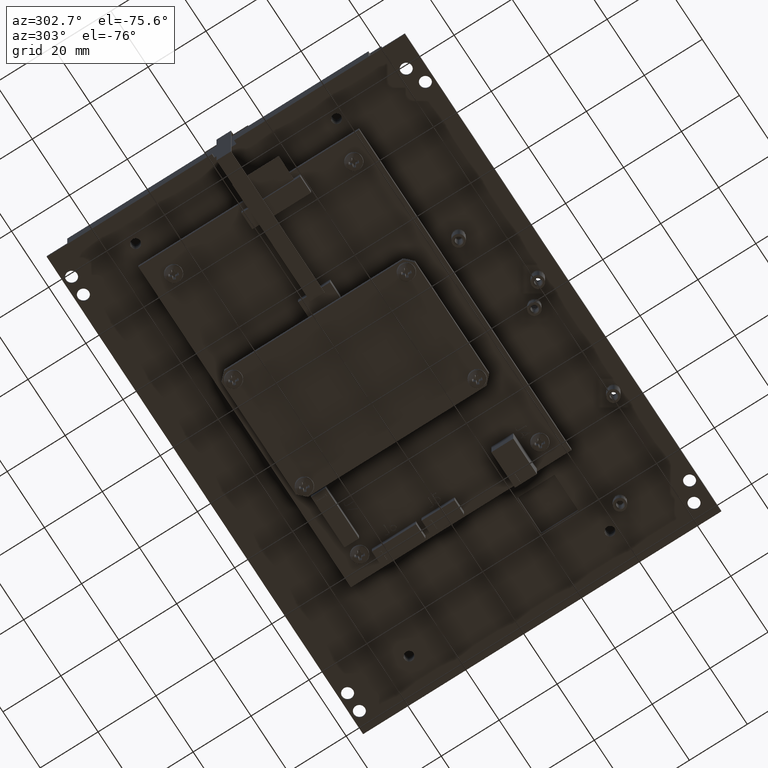
[diagram: clean part render]
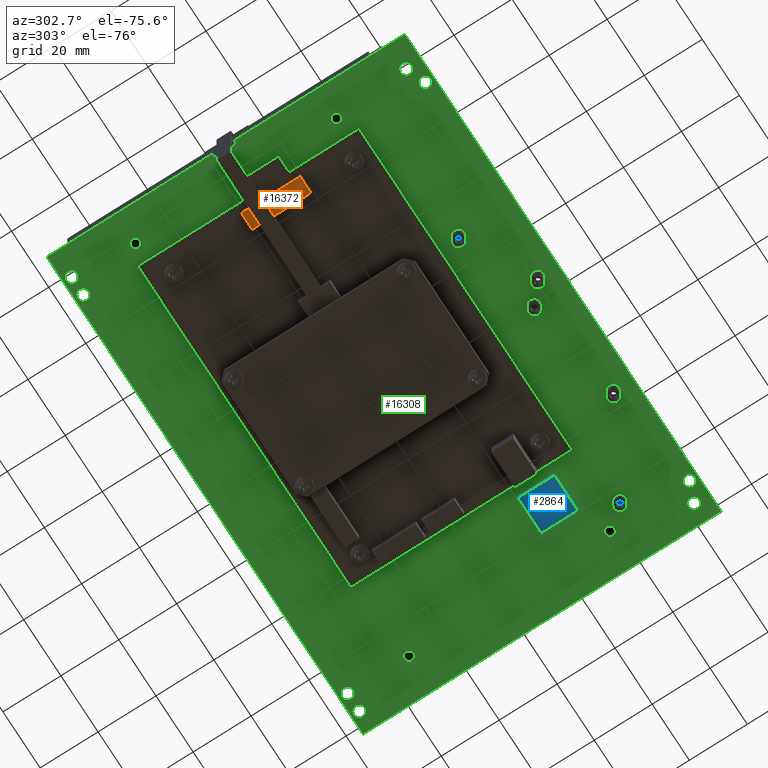
[diagram: same view with three faces highlighted in distinct colors, each labeled with its STEP entity id]
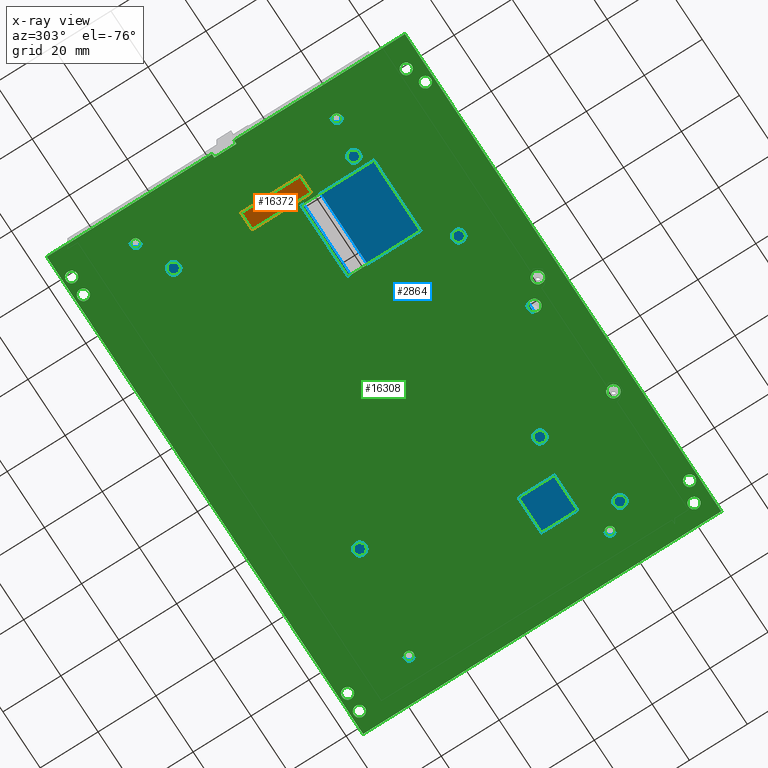
[diagram: x-ray of the same camera — body ghosted, the three highlighted faces saturated]
A machine part, auxiliary view with three faces highlighted in distinct colors.
The next image is the same camera in x-ray (body ghosted, the three faces saturated) — at least one of them is partly hidden behind the body in this view.
Their STEP definitions:

[orange] entity #16372 — the highlighted planar face has unit normal (-0, -0, 1).
#967 = EDGE_CURVE ( 'NONE', #5683, #5650, #19664, .T. ) ;
#971 = EDGE_CURVE ( 'NONE', #5650, #5651, #19691, .T. ) ;
#974 = EDGE_CURVE ( 'NONE', #5651, #5659, #19702, .T. ) ;
#1553 = EDGE_LOOP ( 'NONE', ( #5407, #5408, #5409, #5410 ) ) ;
#1940 = EDGE_CURVE ( 'NONE', #5659, #5683, #6983, .T. ) ;
#4634 = VECTOR ( 'NONE', #7001, 39.37007874015748100 ) ;
#5407 = ORIENTED_EDGE ( 'NONE', *, *, #1940, .T. ) ;
#5408 = ORIENTED_EDGE ( 'NONE', *, *, #967, .T. ) ;
#5409 = ORIENTED_EDGE ( 'NONE', *, *, #971, .T. ) ;
#5410 = ORIENTED_EDGE ( 'NONE', *, *, #974, .T. ) ;
#5650 = VERTEX_POINT ( 'NONE', #14718 ) ;
#5651 = VERTEX_POINT ( 'NONE', #14712 ) ;
#5659 = VERTEX_POINT ( 'NONE', #14726 ) ;
#5683 = VERTEX_POINT ( 'NONE', #14750 ) ;
#6983 = LINE ( 'NONE', #7000, #4634 ) ;
#7000 = CARTESIAN_POINT ( 'NONE',  ( 2.169999999999983100, 0.1630000000000000100, -0.1499999999999986600 ) ) ;
#7001 = DIRECTION ( 'NONE',  ( 3.414809992080366500E-016, -2.711709361697247300E-031, -1.000000000000000000 ) ) ;
#7699 = AXIS2_PLACEMENT_3D ( 'NONE', #11179, #11190, #11191 ) ;
#11179 = CARTESIAN_POINT ( 'NONE',  ( 2.169999999999982200, 0.1629999999999979000, 0.6499999999999958000 ) ) ;
#11187 = FACE_OUTER_BOUND ( 'NONE', #1553, .T. ) ;
#11188 = PLANE ( 'NONE',  #7699 ) ;
#11190 = DIRECTION ( 'NONE',  ( -1.133987551255208500E-030, -1.000000000000000000, -1.232595164407839700E-031 ) ) ;
#11191 = DIRECTION ( 'NONE',  ( 2.714896467620573700E-030, 1.232595164407839700E-031, -1.000000000000000000 ) ) ;
#14712 = CARTESIAN_POINT ( 'NONE',  ( 1.939999999999991100, 0.1629999999999978100, 0.6499999999999917000 ) ) ;
#14718 = CARTESIAN_POINT ( 'NONE',  ( 1.939999999999991100, 0.1629999999999978100, -0.1499999999999984100 ) ) ;
#14726 = CARTESIAN_POINT ( 'NONE',  ( 2.169999999999982200, 0.1629999999999979000, 0.6499999999999958000 ) ) ;
#14750 = CARTESIAN_POINT ( 'NONE',  ( 2.169999999999983100, 0.1630000000000000100, -0.1499999999999986600 ) ) ;
#16198 = VECTOR ( 'NONE', #19696, 39.37007874015748100 ) ;
#16205 = VECTOR ( 'NONE', #19701, 39.37007874015748100 ) ;
#16207 = VECTOR ( 'NONE', #19704, 39.37007874015748100 ) ;
#16372 = ADVANCED_FACE ( 'NONE', ( #11187 ), #11188, .F. ) ;
#19664 = LINE ( 'NONE', #19694, #16198 ) ;
#19691 = LINE ( 'NONE', #19700, #16205 ) ;
#19694 = CARTESIAN_POINT ( 'NONE',  ( 2.169999999999983100, 0.1630000000000000100, -0.1499999999999986600 ) ) ;
#19696 = DIRECTION ( 'NONE',  ( -1.000000000000000000, -4.437342591868207200E-031, 2.566985047891624200E-030 ) ) ;
#19700 = CARTESIAN_POINT ( 'NONE',  ( 1.939999999999991100, 0.1629999999999978100, -0.1499999999999984100 ) ) ;
#19701 = DIRECTION ( 'NONE',  ( -2.714896467620574000E-030, -1.232595164407839700E-031, 1.000000000000000000 ) ) ;
#19702 = LINE ( 'NONE', #19703, #16207 ) ;
#19703 = CARTESIAN_POINT ( 'NONE',  ( 2.169999999999982200, 0.1629999999999979000, 0.6499999999999958000 ) ) ;
#19704 = DIRECTION ( 'NONE',  ( 1.000000000000000000, 4.437342591868207200E-031, -2.566985047891624200E-030 ) ) ;

[blue] entity #2864 — the highlighted planar face has unit normal (0, 0, 1).
#2864 = ADVANCED_FACE ( 'NONE', ( #13893, #13895, #13897, #13899, #13892, #13894, #13896 ), #13901, .F. ) ;
#3633 = VECTOR ( 'NONE', #8657, 39.37007874015748100 ) ;
#3634 = VECTOR ( 'NONE', #8663, 39.37007874015748100 ) ;
#3635 = VECTOR ( 'NONE', #8660, 39.37007874015748100 ) ;
#4447 = CIRCLE ( 'NONE', #4451, 0.05905511811023627500 ) ;
#4451 = AXIS2_PLACEMENT_3D ( 'NONE', #8574, #8575, #8576 ) ;
#4453 = CIRCLE ( 'NONE', #4457, 0.05905511811023627500 ) ;
#4457 = AXIS2_PLACEMENT_3D ( 'NONE', #8586, #8587, #8588 ) ;
#4459 = CIRCLE ( 'NONE', #4463, 0.05905511811023627500 ) ;
#4463 = AXIS2_PLACEMENT_3D ( 'NONE', #8598, #8599, #8600 ) ;
#4465 = CIRCLE ( 'NONE', #4469, 0.05905511811023627500 ) ;
#4467 = VECTOR ( 'NONE', #8619, 39.37007874015748100 ) ;
#4469 = AXIS2_PLACEMENT_3D ( 'NONE', #8612, #8613, #8614 ) ;
#4470 = VECTOR ( 'NONE', #8621, 39.37007874015748100 ) ;
#4471 = VECTOR ( 'NONE', #8623, 39.37007874015748100 ) ;
#4472 = VECTOR ( 'NONE', #8625, 39.37007874015748100 ) ;
#4473 = CIRCLE ( 'NONE', #4476, 0.05905511811023627500 ) ;
#4474 = VECTOR ( 'NONE', #8646, 39.37007874015748100 ) ;
#4475 = CIRCLE ( 'NONE', #4478, 0.05905511811023627500 ) ;
#4476 = AXIS2_PLACEMENT_3D ( 'NONE', #8626, #8627, #8628 ) ;
#4477 = CIRCLE ( 'NONE', #4480, 0.05905511811023627500 ) ;
#4478 = AXIS2_PLACEMENT_3D ( 'NONE', #8629, #8630, #8631 ) ;
#4479 = CIRCLE ( 'NONE', #4482, 0.05905511811023627500 ) ;
#4480 = AXIS2_PLACEMENT_3D ( 'NONE', #8634, #8635, #8636 ) ;
#4481 = VECTOR ( 'NONE', #8643, 39.37007874015748100 ) ;
#4482 = AXIS2_PLACEMENT_3D ( 'NONE', #8639, #8640, #8641 ) ;
#4483 = VECTOR ( 'NONE', #8649, 39.37007874015748100 ) ;
#4484 = VECTOR ( 'NONE', #8652, 39.37007874015748100 ) ;
#4485 = VECTOR ( 'NONE', #8654, 39.37007874015748100 ) ;
#5705 = VERTEX_POINT ( 'NONE', #14765 ) ;
#5708 = VERTEX_POINT ( 'NONE', #14768 ) ;
#5716 = VERTEX_POINT ( 'NONE', #14776 ) ;
#5718 = VERTEX_POINT ( 'NONE', #14778 ) ;
#5719 = VERTEX_POINT ( 'NONE', #14779 ) ;
#5731 = VERTEX_POINT ( 'NONE', #14791 ) ;
#5740 = VERTEX_POINT ( 'NONE', #14800 ) ;
#5741 = VERTEX_POINT ( 'NONE', #14801 ) ;
#5747 = VERTEX_POINT ( 'NONE', #14807 ) ;
#5748 = VERTEX_POINT ( 'NONE', #14808 ) ;
#5749 = VERTEX_POINT ( 'NONE', #14809 ) ;
#5750 = VERTEX_POINT ( 'NONE', #14810 ) ;
#6268 = AXIS2_PLACEMENT_3D ( 'NONE', #13900, #13902, #13903 ) ;
#8574 = CARTESIAN_POINT ( 'NONE',  ( 2.899606299212598200, -1.385826771653543700, -0.0000000000000000000 ) ) ;
#8575 = DIRECTION ( 'NONE',  ( 0.0000000000000000000, 0.0000000000000000000, -1.000000000000000000 ) ) ;
#8576 = DIRECTION ( 'NONE',  ( -1.000000000000000000, 0.0000000000000000000, 0.0000000000000000000 ) ) ;
#8586 = CARTESIAN_POINT ( 'NONE',  ( -2.891732283464566700, -1.385826771653543700, 0.0000000000000000000 ) ) ;
#8587 = DIRECTION ( 'NONE',  ( 0.0000000000000000000, 0.0000000000000000000, -1.000000000000000000 ) ) ;
#8588 = DIRECTION ( 'NONE',  ( -1.000000000000000000, 0.0000000000000000000, 0.0000000000000000000 ) ) ;
#8598 = CARTESIAN_POINT ( 'NONE',  ( -2.891732283464565800, 1.346456692913385000, 0.0000000000000000000 ) ) ;
#8599 = DIRECTION ( 'NONE',  ( 0.0000000000000000000, 0.0000000000000000000, -1.000000000000000000 ) ) ;
#8600 = DIRECTION ( 'NONE',  ( -1.000000000000000000, 0.0000000000000000000, 0.0000000000000000000 ) ) ;
#8610 = LINE ( 'NONE', #8620, #4470 ) ;
#8611 = LINE ( 'NONE', #8617, #4467 ) ;
#8612 = CARTESIAN_POINT ( 'NONE',  ( 2.899606299212598600, 1.346456692913385000, 0.0000000000000000000 ) ) ;
#8613 = DIRECTION ( 'NONE',  ( 0.0000000000000000000, 0.0000000000000000000, -1.000000000000000000 ) ) ;
#8614 = DIRECTION ( 'NONE',  ( -1.000000000000000000, 0.0000000000000000000, 0.0000000000000000000 ) ) ;
#8615 = LINE ( 'NONE', #8622, #4471 ) ;
#8617 = CARTESIAN_POINT ( 'NONE',  ( 0.06102362204724403500, -0.1417322834645677600, -0.0000000000000000000 ) ) ;
#8618 = LINE ( 'NONE', #8624, #4472 ) ;
#8619 = DIRECTION ( 'NONE',  ( 0.0000000000000000000, 1.000000000000000000, 0.0000000000000000000 ) ) ;
#8620 = CARTESIAN_POINT ( 'NONE',  ( 0.3759842519685039400, -0.1417322834645677600, -0.0000000000000000000 ) ) ;
#8621 = DIRECTION ( 'NONE',  ( -1.000000000000000000, 0.0000000000000000000, 0.0000000000000000000 ) ) ;
#8622 = CARTESIAN_POINT ( 'NONE',  ( 0.3759842519685039400, -0.1417322834645677600, -0.0000000000000000000 ) ) ;
#8623 = DIRECTION ( 'NONE',  ( -0.0000000000000000000, -1.000000000000000000, -0.0000000000000000000 ) ) ;
#8624 = CARTESIAN_POINT ( 'NONE',  ( 0.3759842519685039400, 0.4094488188976369600, 0.0000000000000000000 ) ) ;
#8625 = DIRECTION ( 'NONE',  ( 1.000000000000000000, -0.0000000000000000000, -0.0000000000000000000 ) ) ;
#8626 = CARTESIAN_POINT ( 'NONE',  ( 2.899606299212598200, -1.385826771653543700, -0.0000000000000000000 ) ) ;
#8627 = DIRECTION ( 'NONE',  ( 0.0000000000000000000, 0.0000000000000000000, -1.000000000000000000 ) ) ;
#8628 = DIRECTION ( 'NONE',  ( -1.000000000000000000, 0.0000000000000000000, 0.0000000000000000000 ) ) ;
#8629 = CARTESIAN_POINT ( 'NONE',  ( -2.891732283464566700, -1.385826771653543700, 0.0000000000000000000 ) ) ;
#8630 = DIRECTION ( 'NONE',  ( 0.0000000000000000000, 0.0000000000000000000, -1.000000000000000000 ) ) ;
#8631 = DIRECTION ( 'NONE',  ( -1.000000000000000000, 0.0000000000000000000, 0.0000000000000000000 ) ) ;
#8632 = LINE ( 'NONE', #8633, #4481 ) ;
#8633 = CARTESIAN_POINT ( 'NONE',  ( -3.248031496062992600, 2.047244094488188400, 0.0000000000000000000 ) ) ;
#8634 = CARTESIAN_POINT ( 'NONE',  ( -2.891732283464565800, 1.346456692913385000, 0.0000000000000000000 ) ) ;
#8635 = DIRECTION ( 'NONE',  ( 0.0000000000000000000, 0.0000000000000000000, -1.000000000000000000 ) ) ;
#8636 = DIRECTION ( 'NONE',  ( -1.000000000000000000, 0.0000000000000000000, 0.0000000000000000000 ) ) ;
#8637 = LINE ( 'NONE', #8647, #4483 ) ;
#8638 = LINE ( 'NONE', #8644, #4474 ) ;
#8639 = CARTESIAN_POINT ( 'NONE',  ( 2.899606299212598600, 1.346456692913385000, 0.0000000000000000000 ) ) ;
#8640 = DIRECTION ( 'NONE',  ( 0.0000000000000000000, 0.0000000000000000000, -1.000000000000000000 ) ) ;
#8641 = DIRECTION ( 'NONE',  ( -1.000000000000000000, 0.0000000000000000000, 0.0000000000000000000 ) ) ;
#8642 = LINE ( 'NONE', #8650, #4484 ) ;
#8643 = DIRECTION ( 'NONE',  ( 0.0000000000000000000, -1.000000000000000000, 0.0000000000000000000 ) ) ;
#8644 = CARTESIAN_POINT ( 'NONE',  ( -3.248031496062992600, 2.047244094488188400, 0.0000000000000000000 ) ) ;
#8645 = LINE ( 'NONE', #8653, #4485 ) ;
#8646 = DIRECTION ( 'NONE',  ( -1.000000000000000000, -0.0000000000000000000, -0.0000000000000000000 ) ) ;
#8647 = CARTESIAN_POINT ( 'NONE',  ( 3.248031496062992600, 2.047244094488188400, 0.0000000000000000000 ) ) ;
#8649 = DIRECTION ( 'NONE',  ( -0.0000000000000000000, 1.000000000000000000, -0.0000000000000000000 ) ) ;
#8650 = CARTESIAN_POINT ( 'NONE',  ( -3.248031496062992600, -2.047244094488188900, 0.0000000000000000000 ) ) ;
#8652 = DIRECTION ( 'NONE',  ( 1.000000000000000000, 4.205390244792259600E-017, 0.0000000000000000000 ) ) ;
#8653 = CARTESIAN_POINT ( 'NONE',  ( -2.419291338582677300, -0.7496062992125991400, 0.0000000000000000000 ) ) ;
#8654 = DIRECTION ( 'NONE',  ( 0.0000000000000000000, 1.000000000000000000, 0.0000000000000000000 ) ) ;
#8655 = LINE ( 'NONE', #8656, #3633 ) ;
#8656 = CARTESIAN_POINT ( 'NONE',  ( -1.080708661417322900, -0.7496062992125991400, 0.0000000000000000000 ) ) ;
#8657 = DIRECTION ( 'NONE',  ( -1.000000000000000000, 0.0000000000000000000, 0.0000000000000000000 ) ) ;
#8658 = LINE ( 'NONE', #8659, #3635 ) ;
#8659 = CARTESIAN_POINT ( 'NONE',  ( -1.080708661417322900, -0.7496062992125991400, 0.0000000000000000000 ) ) ;
#8660 = DIRECTION ( 'NONE',  ( -0.0000000000000000000, -1.000000000000000000, -0.0000000000000000000 ) ) ;
#8661 = LINE ( 'NONE', #8662, #3634 ) ;
#8662 = CARTESIAN_POINT ( 'NONE',  ( -1.080708661417322900, -0.5133858267716543400, 0.0000000000000000000 ) ) ;
#8663 = DIRECTION ( 'NONE',  ( 1.000000000000000000, -0.0000000000000000000, -0.0000000000000000000 ) ) ;
#9992 = CARTESIAN_POINT ( 'NONE',  ( 0.3759842519685040500, -0.1417322834645677000, 0.0000000000000000000 ) ) ;
#9998 = CARTESIAN_POINT ( 'NONE',  ( -2.950787401574802300, 1.346456692913385000, 0.0000000000000000000 ) ) ;
#9999 = CARTESIAN_POINT ( 'NONE',  ( -2.950787401574802800, -1.385826771653543700, 0.0000000000000000000 ) ) ;
#10006 = CARTESIAN_POINT ( 'NONE',  ( 2.958661417322834700, -1.385826771653543700, 0.0000000000000000000 ) ) ;
#10018 = CARTESIAN_POINT ( 'NONE',  ( -2.832677165354329700, 1.346456692913385000, 0.0000000000000000000 ) ) ;
#10026 = CARTESIAN_POINT ( 'NONE',  ( 0.3759842519685040500, 0.4094488188976369600, 0.0000000000000000000 ) ) ;
#10035 = CARTESIAN_POINT ( 'NONE',  ( -2.832677165354330100, -1.385826771653543700, 0.0000000000000000000 ) ) ;
#10036 = CARTESIAN_POINT ( 'NONE',  ( 2.840551181102362000, -1.385826771653543700, -0.0000000000000000000 ) ) ;
#11844 = EDGE_CURVE ( 'NONE', #12947, #12977, #4447, .T. ) ;
#11852 = EDGE_CURVE ( 'NONE', #12976, #12940, #4453, .T. ) ;
#11861 = EDGE_CURVE ( 'NONE', #12959, #12939, #4459, .T. ) ;
#11869 = EDGE_CURVE ( 'NONE', #5731, #5716, #4465, .T. ) ;
#11873 = EDGE_CURVE ( 'NONE', #5718, #5705, #8611, .T. ) ;
#11875 = EDGE_CURVE ( 'NONE', #12933, #5718, #8610, .T. ) ;
#11877 = EDGE_CURVE ( 'NONE', #12967, #12933, #8615, .T. ) ;
#11880 = EDGE_CURVE ( 'NONE', #5705, #12967, #8618, .T. ) ;
#11882 = EDGE_CURVE ( 'NONE', #12977, #12947, #4473, .T. ) ;
#11883 = EDGE_CURVE ( 'NONE', #12940, #12976, #4475, .T. ) ;
#11886 = EDGE_CURVE ( 'NONE', #12939, #12959, #4477, .T. ) ;
#11888 = EDGE_CURVE ( 'NONE', #5716, #5731, #4479, .T. ) ;
#11890 = EDGE_CURVE ( 'NONE', #5750, #5741, #8632, .T. ) ;
#11892 = EDGE_CURVE ( 'NONE', #5708, #5750, #8638, .T. ) ;
#11894 = EDGE_CURVE ( 'NONE', #5749, #5708, #8637, .T. ) ;
#11896 = EDGE_CURVE ( 'NONE', #5741, #5749, #8642, .T. ) ;
#11898 = EDGE_CURVE ( 'NONE', #5747, #5740, #8645, .T. ) ;
#11900 = EDGE_CURVE ( 'NONE', #5748, #5747, #8655, .T. ) ;
#11901 = EDGE_CURVE ( 'NONE', #5719, #5748, #8658, .T. ) ;
#11902 = EDGE_CURVE ( 'NONE', #5740, #5719, #8661, .T. ) ;
#12933 = VERTEX_POINT ( 'NONE', #9992 ) ;
#12939 = VERTEX_POINT ( 'NONE', #9998 ) ;
#12940 = VERTEX_POINT ( 'NONE', #9999 ) ;
#12947 = VERTEX_POINT ( 'NONE', #10006 ) ;
#12959 = VERTEX_POINT ( 'NONE', #10018 ) ;
#12967 = VERTEX_POINT ( 'NONE', #10026 ) ;
#12976 = VERTEX_POINT ( 'NONE', #10035 ) ;
#12977 = VERTEX_POINT ( 'NONE', #10036 ) ;
#13892 = FACE_BOUND ( 'NONE', #16641, .T. ) ;
#13893 = FACE_BOUND ( 'NONE', #16639, .T. ) ;
#13894 = FACE_OUTER_BOUND ( 'NONE', #16633, .T. ) ;
#13895 = FACE_BOUND ( 'NONE', #16635, .T. ) ;
#13896 = FACE_BOUND ( 'NONE', #16625, .T. ) ;
#13897 = FACE_BOUND ( 'NONE', #16631, .T. ) ;
#13899 = FACE_BOUND ( 'NONE', #16640, .T. ) ;
#13900 = CARTESIAN_POINT ( 'NONE',  ( -3.248031496062992600, 2.047244094488188400, 0.0000000000000000000 ) ) ;
#13901 = PLANE ( 'NONE',  #6268 ) ;
#13902 = DIRECTION ( 'NONE',  ( -0.0000000000000000000, 0.0000000000000000000, 1.000000000000000000 ) ) ;
#13903 = DIRECTION ( 'NONE',  ( 1.000000000000000000, 0.0000000000000000000, 0.0000000000000000000 ) ) ;
#14765 = CARTESIAN_POINT ( 'NONE',  ( 0.06102362204724393100, 0.4094488188976369600, 0.0000000000000000000 ) ) ;
#14768 = CARTESIAN_POINT ( 'NONE',  ( 3.248031496062992600, 2.047244094488188400, 0.0000000000000000000 ) ) ;
#14776 = CARTESIAN_POINT ( 'NONE',  ( 2.840551181102362500, 1.346456692913385000, 0.0000000000000000000 ) ) ;
#14778 = CARTESIAN_POINT ( 'NONE',  ( 0.06102362204724403500, -0.1417322834645677600, -0.0000000000000000000 ) ) ;
#14779 = CARTESIAN_POINT ( 'NONE',  ( -1.080708661417322900, -0.5133858267716542300, 0.0000000000000000000 ) ) ;
#14791 = CARTESIAN_POINT ( 'NONE',  ( 2.958661417322835200, 1.346456692913385000, 0.0000000000000000000 ) ) ;
#14800 = CARTESIAN_POINT ( 'NONE',  ( -2.419291338582677300, -0.5133858267716542300, 0.0000000000000000000 ) ) ;
#14801 = CARTESIAN_POINT ( 'NONE',  ( -3.248031496062992600, -2.047244094488188900, 0.0000000000000000000 ) ) ;
#14807 = CARTESIAN_POINT ( 'NONE',  ( -2.419291338582677300, -0.7496062992125991400, 0.0000000000000000000 ) ) ;
#14808 = CARTESIAN_POINT ( 'NONE',  ( -1.080708661417322900, -0.7496062992125993600, 0.0000000000000000000 ) ) ;
#14809 = CARTESIAN_POINT ( 'NONE',  ( 3.248031496062992600, -2.047244094488188400, 0.0000000000000000000 ) ) ;
#14810 = CARTESIAN_POINT ( 'NONE',  ( -3.248031496062992600, 2.047244094488188400, 0.0000000000000000000 ) ) ;
#15951 = ORIENTED_EDGE ( 'NONE', *, *, #11888, .F. ) ;
#15952 = ORIENTED_EDGE ( 'NONE', *, *, #11898, .F. ) ;
#15953 = ORIENTED_EDGE ( 'NONE', *, *, #11890, .F. ) ;
#15960 = ORIENTED_EDGE ( 'NONE', *, *, #11902, .F. ) ;
#15963 = ORIENTED_EDGE ( 'NONE', *, *, #11873, .F. ) ;
#15964 = ORIENTED_EDGE ( 'NONE', *, *, #11901, .F. ) ;
#15965 = ORIENTED_EDGE ( 'NONE', *, *, #11869, .F. ) ;
#15966 = ORIENTED_EDGE ( 'NONE', *, *, #11875, .F. ) ;
#15967 = ORIENTED_EDGE ( 'NONE', *, *, #11877, .F. ) ;
#15968 = ORIENTED_EDGE ( 'NONE', *, *, #11880, .F. ) ;
#15969 = ORIENTED_EDGE ( 'NONE', *, *, #11882, .F. ) ;
#15970 = ORIENTED_EDGE ( 'NONE', *, *, #11844, .F. ) ;
#15971 = ORIENTED_EDGE ( 'NONE', *, *, #11883, .F. ) ;
#15972 = ORIENTED_EDGE ( 'NONE', *, *, #11852, .F. ) ;
#15973 = ORIENTED_EDGE ( 'NONE', *, *, #11886, .F. ) ;
#15974 = ORIENTED_EDGE ( 'NONE', *, *, #11861, .F. ) ;
#15975 = ORIENTED_EDGE ( 'NONE', *, *, #11894, .F. ) ;
#15976 = ORIENTED_EDGE ( 'NONE', *, *, #11900, .F. ) ;
#15977 = ORIENTED_EDGE ( 'NONE', *, *, #11896, .F. ) ;
#15978 = ORIENTED_EDGE ( 'NONE', *, *, #11892, .F. ) ;
#16625 = EDGE_LOOP ( 'NONE', ( #15952, #15976, #15964, #15960 ) ) ;
#16631 = EDGE_LOOP ( 'NONE', ( #15971, #15972 ) ) ;
#16633 = EDGE_LOOP ( 'NONE', ( #15953, #15978, #15975, #15977 ) ) ;
#16635 = EDGE_LOOP ( 'NONE', ( #15969, #15970 ) ) ;
#16639 = EDGE_LOOP ( 'NONE', ( #15963, #15966, #15967, #15968 ) ) ;
#16640 = EDGE_LOOP ( 'NONE', ( #15973, #15974 ) ) ;
#16641 = EDGE_LOOP ( 'NONE', ( #15951, #15965 ) ) ;

[green] entity #16308 — the highlighted planar face has unit normal (0, 0, -1).
#1607 = EDGE_LOOP ( 'NONE', ( #12518, #12519, #12520, #12521 ) ) ;
#1629 = EDGE_LOOP ( 'NONE', ( #12540, #12541 ) ) ;
#1630 = EDGE_LOOP ( 'NONE', ( #12536, #12537 ) ) ;
#2213 = EDGE_LOOP ( 'NONE', ( #12522, #12523, #12524, #12525 ) ) ;
#3715 = VECTOR ( 'NONE', #8918, 39.37007874015748100 ) ;
#3717 = VECTOR ( 'NONE', #8916, 39.37007874015748100 ) ;
#3718 = VECTOR ( 'NONE', #8929, 39.37007874015748100 ) ;
#3719 = VECTOR ( 'NONE', #8921, 39.37007874015748100 ) ;
#3720 = VECTOR ( 'NONE', #8924, 39.37007874015748100 ) ;
#3721 = VECTOR ( 'NONE', #8927, 39.37007874015748100 ) ;
#3722 = VECTOR ( 'NONE', #8940, 39.37007874015748100 ) ;
#3723 = VECTOR ( 'NONE', #8932, 39.37007874015748100 ) ;
#3724 = VECTOR ( 'NONE', #8935, 39.37007874015748100 ) ;
#3725 = VECTOR ( 'NONE', #8938, 39.37007874015748100 ) ;
#3727 = VECTOR ( 'NONE', #8943, 39.37007874015748100 ) ;
#3728 = CIRCLE ( 'NONE', #3730, 0.08300000000000018500 ) ;
#3729 = CIRCLE ( 'NONE', #3732, 0.08300000000000018500 ) ;
#3730 = AXIS2_PLACEMENT_3D ( 'NONE', #8944, #8945, #8946 ) ;
#3731 = CIRCLE ( 'NONE', #3734, 0.08299999999999990700 ) ;
#3732 = AXIS2_PLACEMENT_3D ( 'NONE', #8947, #8948, #8949 ) ;
#3733 = CIRCLE ( 'NONE', #3736, 0.08299999999999963000 ) ;
#3734 = AXIS2_PLACEMENT_3D ( 'NONE', #8950, #8951, #8952 ) ;
#3735 = CIRCLE ( 'NONE', #3738, 0.08299999999999963000 ) ;
#3736 = AXIS2_PLACEMENT_3D ( 'NONE', #8953, #8954, #8955 ) ;
#3737 = CIRCLE ( 'NONE', #3740, 0.08299999999999963000 ) ;
#3738 = AXIS2_PLACEMENT_3D ( 'NONE', #8956, #8957, #8958 ) ;
#3739 = CIRCLE ( 'NONE', #3742, 0.08299999999999963000 ) ;
#3740 = AXIS2_PLACEMENT_3D ( 'NONE', #8959, #8960, #8961 ) ;
#3741 = CIRCLE ( 'NONE', #3744, 0.08300000000000010100 ) ;
#3742 = AXIS2_PLACEMENT_3D ( 'NONE', #8962, #8963, #8964 ) ;
#3743 = CIRCLE ( 'NONE', #3746, 0.08300000000000018500 ) ;
#3744 = AXIS2_PLACEMENT_3D ( 'NONE', #8965, #8966, #8967 ) ;
#3745 = CIRCLE ( 'NONE', #3748, 0.07500000000000015000 ) ;
#3746 = AXIS2_PLACEMENT_3D ( 'NONE', #8968, #8969, #8970 ) ;
#3747 = CIRCLE ( 'NONE', #3750, 0.07500000000000015000 ) ;
#3748 = AXIS2_PLACEMENT_3D ( 'NONE', #8971, #8972, #8973 ) ;
#3749 = CIRCLE ( 'NONE', #3752, 0.07500000000000015000 ) ;
#3750 = AXIS2_PLACEMENT_3D ( 'NONE', #8974, #8975, #8976 ) ;
#3751 = CIRCLE ( 'NONE', #3754, 0.07500000000000015000 ) ;
#3752 = AXIS2_PLACEMENT_3D ( 'NONE', #8977, #8978, #8979 ) ;
#3753 = CIRCLE ( 'NONE', #3756, 0.07500000000000015000 ) ;
#3754 = AXIS2_PLACEMENT_3D ( 'NONE', #8980, #8981, #8982 ) ;
#3755 = CIRCLE ( 'NONE', #3758, 0.07500000000000015000 ) ;
#3756 = AXIS2_PLACEMENT_3D ( 'NONE', #8983, #8984, #8985 ) ;
#3757 = CIRCLE ( 'NONE', #3760, 0.07500000000000015000 ) ;
#3758 = AXIS2_PLACEMENT_3D ( 'NONE', #8986, #8987, #8988 ) ;
#3759 = CIRCLE ( 'NONE', #3762, 0.07500000000000015000 ) ;
#3760 = AXIS2_PLACEMENT_3D ( 'NONE', #8989, #8990, #8991 ) ;
#3761 = CIRCLE ( 'NONE', #3764, 0.06250000000000022200 ) ;
#3762 = AXIS2_PLACEMENT_3D ( 'NONE', #8992, #8993, #8994 ) ;
#3763 = CIRCLE ( 'NONE', #3766, 0.06250000000000022200 ) ;
#3764 = AXIS2_PLACEMENT_3D ( 'NONE', #8995, #8996, #8997 ) ;
#3765 = CIRCLE ( 'NONE', #3768, 0.06249999999999967400 ) ;
#3766 = AXIS2_PLACEMENT_3D ( 'NONE', #8998, #8999, #9000 ) ;
#3767 = CIRCLE ( 'NONE', #3770, 0.06249999999999967400 ) ;
#3768 = AXIS2_PLACEMENT_3D ( 'NONE', #9003, #9004, #9005 ) ;
#3770 = AXIS2_PLACEMENT_3D ( 'NONE', #9007, #9008, #9009 ) ;
#4342 = VECTOR ( 'NONE', #19086, 39.37007874015748100 ) ;
#4343 = VECTOR ( 'NONE', #19081, 39.37007874015748100 ) ;
#5694 = EDGE_LOOP ( 'NONE', ( #12526, #12527, #12528, #12529, #12530, #12531, #12532, #12533 ) ) ;
#5697 = VERTEX_POINT ( 'NONE', #14758 ) ;
#5698 = VERTEX_POINT ( 'NONE', #14759 ) ;
#5700 = VERTEX_POINT ( 'NONE', #14761 ) ;
#5703 = VERTEX_POINT ( 'NONE', #14763 ) ;
#5704 = VERTEX_POINT ( 'NONE', #14764 ) ;
#5707 = VERTEX_POINT ( 'NONE', #14767 ) ;
#5712 = VERTEX_POINT ( 'NONE', #14772 ) ;
#5713 = VERTEX_POINT ( 'NONE', #14773 ) ;
#5715 = VERTEX_POINT ( 'NONE', #14775 ) ;
#5737 = VERTEX_POINT ( 'NONE', #14797 ) ;
#5738 = VERTEX_POINT ( 'NONE', #14798 ) ;
#5743 = VERTEX_POINT ( 'NONE', #14803 ) ;
#5745 = VERTEX_POINT ( 'NONE', #14805 ) ;
#5746 = VERTEX_POINT ( 'NONE', #14806 ) ;
#5752 = VERTEX_POINT ( 'NONE', #14812 ) ;
#5755 = VERTEX_POINT ( 'NONE', #14815 ) ;
#5765 = VERTEX_POINT ( 'NONE', #14825 ) ;
#5766 = VERTEX_POINT ( 'NONE', #14826 ) ;
#5769 = VERTEX_POINT ( 'NONE', #14829 ) ;
#5774 = VERTEX_POINT ( 'NONE', #14834 ) ;
#5792 = VERTEX_POINT ( 'NONE', #14852 ) ;
#5803 = VERTEX_POINT ( 'NONE', #14863 ) ;
#5804 = VERTEX_POINT ( 'NONE', #14864 ) ;
#5816 = VERTEX_POINT ( 'NONE', #14876 ) ;
#5817 = VERTEX_POINT ( 'NONE', #14877 ) ;
#5818 = VERTEX_POINT ( 'NONE', #14878 ) ;
#5822 = VERTEX_POINT ( 'NONE', #14882 ) ;
#5829 = VERTEX_POINT ( 'NONE', #14889 ) ;
#5830 = VERTEX_POINT ( 'NONE', #14890 ) ;
#5832 = VERTEX_POINT ( 'NONE', #14892 ) ;
#5837 = VERTEX_POINT ( 'NONE', #14897 ) ;
#5839 = VERTEX_POINT ( 'NONE', #14899 ) ;
#5840 = VERTEX_POINT ( 'NONE', #14900 ) ;
#5842 = VERTEX_POINT ( 'NONE', #14902 ) ;
#5844 = VERTEX_POINT ( 'NONE', #14904 ) ;
#5846 = VERTEX_POINT ( 'NONE', #14906 ) ;
#5849 = VERTEX_POINT ( 'NONE', #14909 ) ;
#5850 = VERTEX_POINT ( 'NONE', #14910 ) ;
#5857 = VERTEX_POINT ( 'NONE', #14917 ) ;
#5862 = VERTEX_POINT ( 'NONE', #14922 ) ;
#5863 = VERTEX_POINT ( 'NONE', #14923 ) ;
#5866 = VERTEX_POINT ( 'NONE', #14926 ) ;
#5867 = VERTEX_POINT ( 'NONE', #14928 ) ;
#5868 = VERTEX_POINT ( 'NONE', #14929 ) ;
#5874 = VERTEX_POINT ( 'NONE', #14939 ) ;
#5882 = VERTEX_POINT ( 'NONE', #14952 ) ;
#5888 = VERTEX_POINT ( 'NONE', #14961 ) ;
#5890 = VERTEX_POINT ( 'NONE', #14965 ) ;
#5899 = VERTEX_POINT ( 'NONE', #14978 ) ;
#5901 = VERTEX_POINT ( 'NONE', #14980 ) ;
#5904 = VERTEX_POINT ( 'NONE', #14983 ) ;
#5914 = VERTEX_POINT ( 'NONE', #14993 ) ;
#5919 = VERTEX_POINT ( 'NONE', #14998 ) ;
#5920 = VERTEX_POINT ( 'NONE', #14999 ) ;
#5921 = VERTEX_POINT ( 'NONE', #15000 ) ;
#5922 = VERTEX_POINT ( 'NONE', #15001 ) ;
#5924 = VERTEX_POINT ( 'NONE', #15003 ) ;
#5927 = VERTEX_POINT ( 'NONE', #15006 ) ;
#5930 = EDGE_LOOP ( 'NONE', ( #12548, #12549 ) ) ;
#5931 = EDGE_LOOP ( 'NONE', ( #12542, #12543 ) ) ;
#5932 = EDGE_LOOP ( 'NONE', ( #12550, #12551 ) ) ;
#5933 = EDGE_LOOP ( 'NONE', ( #12544, #12545 ) ) ;
#5934 = EDGE_LOOP ( 'NONE', ( #12552, #12553 ) ) ;
#5935 = EDGE_LOOP ( 'NONE', ( #12546, #12547 ) ) ;
#5936 = EDGE_LOOP ( 'NONE', ( #12554, #12555 ) ) ;
#5937 = EDGE_LOOP ( 'NONE', ( #12556, #12557 ) ) ;
#5938 = EDGE_LOOP ( 'NONE', ( #12558, #12559 ) ) ;
#5939 = EDGE_LOOP ( 'NONE', ( #12560, #12561 ) ) ;
#5940 = EDGE_LOOP ( 'NONE', ( #12562, #12563 ) ) ;
#5941 = EDGE_LOOP ( 'NONE', ( #12564, #12565 ) ) ;
#5942 = EDGE_LOOP ( 'NONE', ( #12566, #12567 ) ) ;
#5943 = EDGE_LOOP ( 'NONE', ( #12568, #12569 ) ) ;
#5944 = EDGE_LOOP ( 'NONE', ( #12570, #12571 ) ) ;
#5945 = EDGE_LOOP ( 'NONE', ( #12572, #12573 ) ) ;
#5946 = EDGE_LOOP ( 'NONE', ( #12574, #12575 ) ) ;
#7635 = AXIS2_PLACEMENT_3D ( 'NONE', #10839, #10842, #10843 ) ;
#8744 = CIRCLE ( 'NONE', #8751, 0.08300000000000018500 ) ;
#8749 = CIRCLE ( 'NONE', #8760, 0.08300000000000018500 ) ;
#8751 = AXIS2_PLACEMENT_3D ( 'NONE', #18794, #18795, #18796 ) ;
#8760 = AXIS2_PLACEMENT_3D ( 'NONE', #18804, #18805, #18806 ) ;
#8761 = CIRCLE ( 'NONE', #8771, 0.08299999999999990700 ) ;
#8771 = AXIS2_PLACEMENT_3D ( 'NONE', #18816, #18817, #18818 ) ;
#8773 = CIRCLE ( 'NONE', #8782, 0.08299999999999963000 ) ;
#8782 = AXIS2_PLACEMENT_3D ( 'NONE', #18828, #18829, #18830 ) ;
#8784 = CIRCLE ( 'NONE', #8793, 0.08299999999999963000 ) ;
#8793 = AXIS2_PLACEMENT_3D ( 'NONE', #18840, #18841, #18842 ) ;
#8795 = CIRCLE ( 'NONE', #8805, 0.08299999999999963000 ) ;
#8805 = AXIS2_PLACEMENT_3D ( 'NONE', #18852, #18853, #18854 ) ;
#8806 = CIRCLE ( 'NONE', #8813, 0.08299999999999963000 ) ;
#8813 = AXIS2_PLACEMENT_3D ( 'NONE', #18864, #18865, #18866 ) ;
#8815 = CIRCLE ( 'NONE', #8824, 0.08300000000000010100 ) ;
#8824 = AXIS2_PLACEMENT_3D ( 'NONE', #18876, #18877, #18878 ) ;
#8826 = CIRCLE ( 'NONE', #8834, 0.08300000000000018500 ) ;
#8834 = AXIS2_PLACEMENT_3D ( 'NONE', #18888, #18889, #18890 ) ;
#8835 = CIRCLE ( 'NONE', #8844, 0.07500000000000015000 ) ;
#8844 = AXIS2_PLACEMENT_3D ( 'NONE', #18900, #18901, #18902 ) ;
#8846 = CIRCLE ( 'NONE', #8855, 0.07500000000000015000 ) ;
#8855 = AXIS2_PLACEMENT_3D ( 'NONE', #18912, #18913, #18914 ) ;
#8901 = LINE ( 'NONE', #8917, #3715 ) ;
#8906 = LINE ( 'NONE', #8928, #3718 ) ;
#8913 = LINE ( 'NONE', #8915, #3717 ) ;
#8914 = LINE ( 'NONE', #8939, #3722 ) ;
#8915 = CARTESIAN_POINT ( 'NONE',  ( 1.956000000000000600, -0.5619999999999999400, 0.0000000000000000000 ) ) ;
#8916 = DIRECTION ( 'NONE',  ( 0.0000000000000000000, -1.000000000000000000, 0.0000000000000000000 ) ) ;
#8917 = CARTESIAN_POINT ( 'NONE',  ( 1.956000000000000600, -1.061999999999999400, 0.0000000000000000000 ) ) ;
#8918 = DIRECTION ( 'NONE',  ( 1.000000000000000000, 0.0000000000000000000, 0.0000000000000000000 ) ) ;
#8919 = LINE ( 'NONE', #8920, #3719 ) ;
#8920 = CARTESIAN_POINT ( 'NONE',  ( 2.456000000000001300, -0.5619999999999999400, 0.0000000000000000000 ) ) ;
#8921 = DIRECTION ( 'NONE',  ( -0.0000000000000000000, 1.000000000000000000, -0.0000000000000000000 ) ) ;
#8922 = LINE ( 'NONE', #8923, #3720 ) ;
#8923 = CARTESIAN_POINT ( 'NONE',  ( 1.956000000000000600, -0.5619999999999999400, 0.0000000000000000000 ) ) ;
#8924 = DIRECTION ( 'NONE',  ( -1.000000000000000000, -0.0000000000000000000, -0.0000000000000000000 ) ) ;
#8925 = LINE ( 'NONE', #8926, #3721 ) ;
#8926 = CARTESIAN_POINT ( 'NONE',  ( -2.290999999999998100, -0.3349999999999993000, 0.0000000000000000000 ) ) ;
#8927 = DIRECTION ( 'NONE',  ( 0.0000000000000000000, -1.000000000000000000, 0.0000000000000000000 ) ) ;
#8928 = CARTESIAN_POINT ( 'NONE',  ( -2.290999999999998100, -1.334999999999999500, 0.0000000000000000000 ) ) ;
#8929 = DIRECTION ( 'NONE',  ( 1.000000000000000000, 0.0000000000000000000, 0.0000000000000000000 ) ) ;
#8930 = LINE ( 'NONE', #8931, #3723 ) ;
#8931 = CARTESIAN_POINT ( 'NONE',  ( -1.290999999999997700, -0.3349999999999993000, 0.0000000000000000000 ) ) ;
#8932 = DIRECTION ( 'NONE',  ( -0.0000000000000000000, 1.000000000000000000, -0.0000000000000000000 ) ) ;
#8933 = LINE ( 'NONE', #8934, #3724 ) ;
#8934 = CARTESIAN_POINT ( 'NONE',  ( -2.290999999999998100, -0.3349999999999993000, 0.0000000000000000000 ) ) ;
#8935 = DIRECTION ( 'NONE',  ( -1.000000000000000000, -0.0000000000000000000, -0.0000000000000000000 ) ) ;
#8936 = LINE ( 'NONE', #8937, #3725 ) ;
#8937 = CARTESIAN_POINT ( 'NONE',  ( -3.349999999999998300, 0.1880000000000005600, 0.0000000000000000000 ) ) ;
#8938 = DIRECTION ( 'NONE',  ( -1.000000000000000000, -0.0000000000000000000, -0.0000000000000000000 ) ) ;
#8939 = CARTESIAN_POINT ( 'NONE',  ( -3.349999999999998300, -0.1120000000000000900, 0.0000000000000000000 ) ) ;
#8940 = DIRECTION ( 'NONE',  ( 1.000000000000000000, 0.0000000000000000000, 0.0000000000000000000 ) ) ;
#8941 = LINE ( 'NONE', #8942, #3727 ) ;
#8942 = CARTESIAN_POINT ( 'NONE',  ( -3.299999999999998000, 0.1880000000000005600, 0.0000000000000000000 ) ) ;
#8943 = DIRECTION ( 'NONE',  ( -0.0000000000000000000, 1.000000000000000000, -0.0000000000000000000 ) ) ;
#8944 = CARTESIAN_POINT ( 'NONE',  ( 2.625000000000000400, -1.522000000000000000, 0.0000000000000000000 ) ) ;
#8945 = DIRECTION ( 'NONE',  ( 0.0000000000000000000, 0.0000000000000000000, 1.000000000000000000 ) ) ;
#8946 = DIRECTION ( 'NONE',  ( 1.000000000000000000, 0.0000000000000000000, 0.0000000000000000000 ) ) ;
#8947 = CARTESIAN_POINT ( 'NONE',  ( 0.1500000000000014100, -1.946999999999999400, 0.0000000000000000000 ) ) ;
#8948 = DIRECTION ( 'NONE',  ( 0.0000000000000000000, 0.0000000000000000000, 1.000000000000000000 ) ) ;
#8949 = DIRECTION ( 'NONE',  ( 1.000000000000000000, 0.0000000000000000000, 0.0000000000000000000 ) ) ;
#8950 = CARTESIAN_POINT ( 'NONE',  ( 1.490000000000001500, -1.161999999999999900, 0.0000000000000000000 ) ) ;
#8951 = DIRECTION ( 'NONE',  ( 0.0000000000000000000, 0.0000000000000000000, 1.000000000000000000 ) ) ;
#8952 = DIRECTION ( 'NONE',  ( 1.000000000000000000, 0.0000000000000000000, 0.0000000000000000000 ) ) ;
#8953 = CARTESIAN_POINT ( 'NONE',  ( 1.490000000000001300, 1.287999999999999800, 0.0000000000000000000 ) ) ;
#8954 = DIRECTION ( 'NONE',  ( 0.0000000000000000000, 0.0000000000000000000, 1.000000000000000000 ) ) ;
#8955 = DIRECTION ( 'NONE',  ( 1.000000000000000000, 0.0000000000000000000, 0.0000000000000000000 ) ) ;
#8956 = CARTESIAN_POINT ( 'NONE',  ( -2.449999999999998400, -1.161999999999999900, 0.0000000000000000000 ) ) ;
#8957 = DIRECTION ( 'NONE',  ( 0.0000000000000000000, 0.0000000000000000000, 1.000000000000000000 ) ) ;
#8958 = DIRECTION ( 'NONE',  ( 1.000000000000000000, 0.0000000000000000000, 0.0000000000000000000 ) ) ;
#8959 = CARTESIAN_POINT ( 'NONE',  ( -2.449999999999998400, 1.287999999999999800, 0.0000000000000000000 ) ) ;
#8960 = DIRECTION ( 'NONE',  ( 0.0000000000000000000, 0.0000000000000000000, 1.000000000000000000 ) ) ;
#8961 = DIRECTION ( 'NONE',  ( 1.000000000000000000, 0.0000000000000000000, 0.0000000000000000000 ) ) ;
#8962 = CARTESIAN_POINT ( 'NONE',  ( 1.490000000000001300, -2.161999999999999900, 0.0000000000000000000 ) ) ;
#8963 = DIRECTION ( 'NONE',  ( 0.0000000000000000000, 0.0000000000000000000, 1.000000000000000000 ) ) ;
#8964 = DIRECTION ( 'NONE',  ( 1.000000000000000000, 0.0000000000000000000, 0.0000000000000000000 ) ) ;
#8965 = CARTESIAN_POINT ( 'NONE',  ( -0.1099999999999985600, -2.161999999999999900, 0.0000000000000000000 ) ) ;
#8966 = DIRECTION ( 'NONE',  ( 0.0000000000000000000, 0.0000000000000000000, 1.000000000000000000 ) ) ;
#8967 = DIRECTION ( 'NONE',  ( 1.000000000000000000, 0.0000000000000000000, 0.0000000000000000000 ) ) ;
#8968 = CARTESIAN_POINT ( 'NONE',  ( -1.009999999999998900, -1.662000000000000100, 0.0000000000000000000 ) ) ;
#8969 = DIRECTION ( 'NONE',  ( 0.0000000000000000000, 0.0000000000000000000, 1.000000000000000000 ) ) ;
#8970 = DIRECTION ( 'NONE',  ( 1.000000000000000000, 0.0000000000000000000, 0.0000000000000000000 ) ) ;
#8971 = CARTESIAN_POINT ( 'NONE',  ( 3.100000000000000100, 2.325000000000001100, 0.0000000000000000000 ) ) ;
#8972 = DIRECTION ( 'NONE',  ( 0.0000000000000000000, 0.0000000000000000000, 1.000000000000000000 ) ) ;
#8973 = DIRECTION ( 'NONE',  ( -1.000000000000000000, 0.0000000000000000000, 0.0000000000000000000 ) ) ;
#8974 = CARTESIAN_POINT ( 'NONE',  ( 2.850000000000000100, 2.325000000000001100, 0.0000000000000000000 ) ) ;
#8975 = DIRECTION ( 'NONE',  ( 0.0000000000000000000, 0.0000000000000000000, 1.000000000000000000 ) ) ;
#8976 = DIRECTION ( 'NONE',  ( -1.000000000000000000, 0.0000000000000000000, 0.0000000000000000000 ) ) ;
#8977 = CARTESIAN_POINT ( 'NONE',  ( 3.100000000000001000, -2.224999999999999200, 0.0000000000000000000 ) ) ;
#8978 = DIRECTION ( 'NONE',  ( 0.0000000000000000000, 0.0000000000000000000, 1.000000000000000000 ) ) ;
#8979 = DIRECTION ( 'NONE',  ( -1.000000000000000000, 0.0000000000000000000, 0.0000000000000000000 ) ) ;
#8980 = CARTESIAN_POINT ( 'NONE',  ( 2.850000000000001000, -2.324999999999999300, 0.0000000000000000000 ) ) ;
#8981 = DIRECTION ( 'NONE',  ( 0.0000000000000000000, 0.0000000000000000000, 1.000000000000000000 ) ) ;
#8982 = DIRECTION ( 'NONE',  ( -1.000000000000000000, 0.0000000000000000000, 0.0000000000000000000 ) ) ;
#8983 = CARTESIAN_POINT ( 'NONE',  ( -2.744999999999998800, -2.325000000000000200, 0.0000000000000000000 ) ) ;
#8984 = DIRECTION ( 'NONE',  ( 0.0000000000000000000, 0.0000000000000000000, 1.000000000000000000 ) ) ;
#8985 = DIRECTION ( 'NONE',  ( 1.000000000000000000, 0.0000000000000000000, 0.0000000000000000000 ) ) ;
#8986 = CARTESIAN_POINT ( 'NONE',  ( -2.994999999999998300, -2.225000000000000100, 0.0000000000000000000 ) ) ;
#8987 = DIRECTION ( 'NONE',  ( 0.0000000000000000000, 0.0000000000000000000, 1.000000000000000000 ) ) ;
#8988 = DIRECTION ( 'NONE',  ( 1.000000000000000000, 0.0000000000000000000, 0.0000000000000000000 ) ) ;
#8989 = CARTESIAN_POINT ( 'NONE',  ( -2.744999999999998800, 2.325000000000000200, 0.0000000000000000000 ) ) ;
#8990 = DIRECTION ( 'NONE',  ( 0.0000000000000000000, 0.0000000000000000000, 1.000000000000000000 ) ) ;
#8991 = DIRECTION ( 'NONE',  ( 1.000000000000000000, 0.0000000000000000000, 0.0000000000000000000 ) ) ;
#8992 = CARTESIAN_POINT ( 'NONE',  ( -2.994999999999999200, 2.325000000000000200, 0.0000000000000000000 ) ) ;
#8993 = DIRECTION ( 'NONE',  ( 0.0000000000000000000, 0.0000000000000000000, 1.000000000000000000 ) ) ;
#8994 = DIRECTION ( 'NONE',  ( 1.000000000000000000, 0.0000000000000000000, 0.0000000000000000000 ) ) ;
#8995 = CARTESIAN_POINT ( 'NONE',  ( 2.859000000000000900, -1.236999999999999700, 0.0000000000000000000 ) ) ;
#8996 = DIRECTION ( 'NONE',  ( 0.0000000000000000000, 0.0000000000000000000, 1.000000000000000000 ) ) ;
#8997 = DIRECTION ( 'NONE',  ( 1.000000000000000000, 0.0000000000000000000, 0.0000000000000000000 ) ) ;
#8998 = CARTESIAN_POINT ( 'NONE',  ( -2.931999999999999100, -1.237000000000000800, 0.0000000000000000000 ) ) ;
#8999 = DIRECTION ( 'NONE',  ( 0.0000000000000000000, 0.0000000000000000000, 1.000000000000000000 ) ) ;
#9000 = DIRECTION ( 'NONE',  ( 1.000000000000000000, 0.0000000000000000000, 0.0000000000000000000 ) ) ;
#9003 = CARTESIAN_POINT ( 'NONE',  ( 2.859000000000000400, 1.495000000000000600, 0.0000000000000000000 ) ) ;
#9004 = DIRECTION ( 'NONE',  ( 0.0000000000000000000, 0.0000000000000000000, 1.000000000000000000 ) ) ;
#9005 = DIRECTION ( 'NONE',  ( 1.000000000000000000, 0.0000000000000000000, 0.0000000000000000000 ) ) ;
#9007 = CARTESIAN_POINT ( 'NONE',  ( -2.931999999999999100, 1.495000000000000600, 0.0000000000000000000 ) ) ;
#9008 = DIRECTION ( 'NONE',  ( 0.0000000000000000000, 0.0000000000000000000, 1.000000000000000000 ) ) ;
#9009 = DIRECTION ( 'NONE',  ( 1.000000000000000000, 0.0000000000000000000, 0.0000000000000000000 ) ) ;
#10810 = FACE_BOUND ( 'NONE', #5935, .T. ) ;
#10812 = FACE_BOUND ( 'NONE', #2213, .T. ) ;
#10816 = FACE_BOUND ( 'NONE', #1630, .T. ) ;
#10817 = FACE_BOUND ( 'NONE', #1607, .T. ) ;
#10818 = FACE_BOUND ( 'NONE', #16070, .T. ) ;
#10819 = FACE_BOUND ( 'NONE', #1629, .T. ) ;
#10820 = FACE_OUTER_BOUND ( 'NONE', #5694, .T. ) ;
#10821 = FACE_BOUND ( 'NONE', #5931, .T. ) ;
#10822 = FACE_BOUND ( 'NONE', #16019, .T. ) ;
#10823 = FACE_BOUND ( 'NONE', #5933, .T. ) ;
#10824 = FACE_BOUND ( 'NONE', #5930, .T. ) ;
#10825 = FACE_BOUND ( 'NONE', #5932, .T. ) ;
#10826 = FACE_BOUND ( 'NONE', #5934, .T. ) ;
#10827 = FACE_BOUND ( 'NONE', #5936, .T. ) ;
#10828 = FACE_BOUND ( 'NONE', #5937, .T. ) ;
#10829 = FACE_BOUND ( 'NONE', #5938, .T. ) ;
#10830 = FACE_BOUND ( 'NONE', #5939, .T. ) ;
#10831 = FACE_BOUND ( 'NONE', #5940, .T. ) ;
#10832 = FACE_BOUND ( 'NONE', #5941, .T. ) ;
#10833 = FACE_BOUND ( 'NONE', #5942, .T. ) ;
#10834 = FACE_BOUND ( 'NONE', #5943, .T. ) ;
#10835 = FACE_BOUND ( 'NONE', #5944, .T. ) ;
#10836 = FACE_BOUND ( 'NONE', #5945, .T. ) ;
#10837 = FACE_BOUND ( 'NONE', #5946, .T. ) ;
#10839 = CARTESIAN_POINT ( 'NONE',  ( 3.350000000000000100, 2.435000000000000500, 0.0000000000000000000 ) ) ;
#10841 = PLANE ( 'NONE',  #7635 ) ;
#10842 = DIRECTION ( 'NONE',  ( 0.0000000000000000000, 0.0000000000000000000, -1.000000000000000000 ) ) ;
#10843 = DIRECTION ( 'NONE',  ( -1.000000000000000000, 0.0000000000000000000, -0.0000000000000000000 ) ) ;
#11469 = EDGE_CURVE ( 'NONE', #5863, #5866, #8744, .T. ) ;
#11476 = EDGE_CURVE ( 'NONE', #5904, #5837, #8749, .T. ) ;
#11484 = EDGE_CURVE ( 'NONE', #5703, #5737, #8761, .T. ) ;
#11492 = EDGE_CURVE ( 'NONE', #5713, #5712, #8773, .T. ) ;
#11501 = EDGE_CURVE ( 'NONE', #5698, #5697, #8784, .T. ) ;
#11510 = EDGE_CURVE ( 'NONE', #5919, #5924, #8795, .T. ) ;
#11519 = EDGE_CURVE ( 'NONE', #5921, #5920, #8806, .T. ) ;
#11529 = EDGE_CURVE ( 'NONE', #5927, #5715, #8815, .T. ) ;
#11538 = EDGE_CURVE ( 'NONE', #5818, #5817, #8826, .T. ) ;
#11547 = EDGE_CURVE ( 'NONE', #5846, #5840, #8835, .T. ) ;
#11557 = EDGE_CURVE ( 'NONE', #5922, #5707, #8846, .T. ) ;
#11565 = EDGE_CURVE ( 'NONE', #5746, #5738, #16808, .T. ) ;
#11574 = EDGE_CURVE ( 'NONE', #5804, #5832, #16810, .T. ) ;
#11584 = EDGE_CURVE ( 'NONE', #5816, #5822, #16817, .T. ) ;
#11592 = EDGE_CURVE ( 'NONE', #5774, #5765, #16823, .T. ) ;
#11601 = EDGE_CURVE ( 'NONE', #5849, #5850, #16829, .T. ) ;
#11611 = EDGE_CURVE ( 'NONE', #5899, #5901, #16835, .T. ) ;
#11619 = EDGE_CURVE ( 'NONE', #5700, #5704, #16841, .T. ) ;
#11628 = EDGE_CURVE ( 'NONE', #5874, #5803, #16847, .T. ) ;
#11637 = EDGE_CURVE ( 'NONE', #5914, #5842, #16853, .T. ) ;
#11646 = EDGE_CURVE ( 'NONE', #5752, #5755, #16859, .T. ) ;
#11655 = EDGE_CURVE ( 'NONE', #5890, #5888, #19038, .T. ) ;
#11665 = EDGE_CURVE ( 'NONE', #5867, #5862, #19055, .T. ) ;
#11673 = EDGE_CURVE ( 'NONE', #5862, #5890, #19067, .T. ) ;
#11682 = EDGE_CURVE ( 'NONE', #5882, #5868, #19056, .T. ) ;
#11687 = EDGE_CURVE ( 'NONE', #5868, #5867, #19077, .T. ) ;
#12026 = EDGE_CURVE ( 'NONE', #5766, #5844, #8913, .T. ) ;
#12028 = EDGE_CURVE ( 'NONE', #5844, #5745, #8901, .T. ) ;
#12030 = EDGE_CURVE ( 'NONE', #5745, #5839, #8919, .T. ) ;
#12031 = EDGE_CURVE ( 'NONE', #5839, #5766, #8922, .T. ) ;
#12032 = EDGE_CURVE ( 'NONE', #5857, #5743, #8925, .T. ) ;
#12034 = EDGE_CURVE ( 'NONE', #5743, #5829, #8906, .T. ) ;
#12035 = EDGE_CURVE ( 'NONE', #5829, #5830, #8930, .T. ) ;
#12037 = EDGE_CURVE ( 'NONE', #5830, #5857, #8933, .T. ) ;
#12038 = EDGE_CURVE ( 'NONE', #5792, #5888, #8936, .T. ) ;
#12040 = EDGE_CURVE ( 'NONE', #5882, #5769, #8914, .T. ) ;
#12042 = EDGE_CURVE ( 'NONE', #5769, #5792, #8941, .T. ) ;
#12043 = EDGE_CURVE ( 'NONE', #5866, #5863, #3728, .T. ) ;
#12045 = EDGE_CURVE ( 'NONE', #5837, #5904, #3729, .T. ) ;
#12046 = EDGE_CURVE ( 'NONE', #5737, #5703, #3731, .T. ) ;
#12048 = EDGE_CURVE ( 'NONE', #5712, #5713, #3733, .T. ) ;
#12049 = EDGE_CURVE ( 'NONE', #5697, #5698, #3735, .T. ) ;
#12050 = EDGE_CURVE ( 'NONE', #5924, #5919, #3737, .T. ) ;
#12052 = EDGE_CURVE ( 'NONE', #5920, #5921, #3739, .T. ) ;
#12054 = EDGE_CURVE ( 'NONE', #5715, #5927, #3741, .T. ) ;
#12056 = EDGE_CURVE ( 'NONE', #5817, #5818, #3743, .T. ) ;
#12058 = EDGE_CURVE ( 'NONE', #5840, #5846, #3745, .T. ) ;
#12059 = EDGE_CURVE ( 'NONE', #5707, #5922, #3747, .T. ) ;
#12061 = EDGE_CURVE ( 'NONE', #5738, #5746, #3749, .T. ) ;
#12062 = EDGE_CURVE ( 'NONE', #5832, #5804, #3751, .T. ) ;
#12064 = EDGE_CURVE ( 'NONE', #5822, #5816, #3753, .T. ) ;
#12066 = EDGE_CURVE ( 'NONE', #5765, #5774, #3755, .T. ) ;
#12067 = EDGE_CURVE ( 'NONE', #5850, #5849, #3757, .T. ) ;
#12069 = EDGE_CURVE ( 'NONE', #5901, #5899, #3759, .T. ) ;
#12070 = EDGE_CURVE ( 'NONE', #5704, #5700, #3761, .T. ) ;
#12072 = EDGE_CURVE ( 'NONE', #5803, #5874, #3763, .T. ) ;
#12073 = EDGE_CURVE ( 'NONE', #5842, #5914, #3765, .T. ) ;
#12074 = EDGE_CURVE ( 'NONE', #5755, #5752, #3767, .T. ) ;
#12518 = ORIENTED_EDGE ( 'NONE', *, *, #12026, .T. ) ;
#12519 = ORIENTED_EDGE ( 'NONE', *, *, #12028, .T. ) ;
#12520 = ORIENTED_EDGE ( 'NONE', *, *, #12030, .T. ) ;
#12521 = ORIENTED_EDGE ( 'NONE', *, *, #12031, .T. ) ;
#12522 = ORIENTED_EDGE ( 'NONE', *, *, #12032, .T. ) ;
#12523 = ORIENTED_EDGE ( 'NONE', *, *, #12034, .T. ) ;
#12524 = ORIENTED_EDGE ( 'NONE', *, *, #12035, .T. ) ;
#12525 = ORIENTED_EDGE ( 'NONE', *, *, #12037, .T. ) ;
#12526 = ORIENTED_EDGE ( 'NONE', *, *, #12038, .T. ) ;
#12527 = ORIENTED_EDGE ( 'NONE', *, *, #11655, .F. ) ;
#12528 = ORIENTED_EDGE ( 'NONE', *, *, #11673, .F. ) ;
#12529 = ORIENTED_EDGE ( 'NONE', *, *, #11665, .F. ) ;
#12530 = ORIENTED_EDGE ( 'NONE', *, *, #11687, .F. ) ;
#12531 = ORIENTED_EDGE ( 'NONE', *, *, #11682, .F. ) ;
#12532 = ORIENTED_EDGE ( 'NONE', *, *, #12040, .T. ) ;
#12533 = ORIENTED_EDGE ( 'NONE', *, *, #12042, .T. ) ;
#12534 = ORIENTED_EDGE ( 'NONE', *, *, #12043, .T. ) ;
#12535 = ORIENTED_EDGE ( 'NONE', *, *, #11469, .T. ) ;
#12536 = ORIENTED_EDGE ( 'NONE', *, *, #12045, .T. ) ;
#12537 = ORIENTED_EDGE ( 'NONE', *, *, #11476, .T. ) ;
#12538 = ORIENTED_EDGE ( 'NONE', *, *, #12046, .T. ) ;
#12539 = ORIENTED_EDGE ( 'NONE', *, *, #11484, .T. ) ;
#12540 = ORIENTED_EDGE ( 'NONE', *, *, #12048, .T. ) ;
#12541 = ORIENTED_EDGE ( 'NONE', *, *, #11492, .T. ) ;
#12542 = ORIENTED_EDGE ( 'NONE', *, *, #12049, .T. ) ;
#12543 = ORIENTED_EDGE ( 'NONE', *, *, #11501, .T. ) ;
#12544 = ORIENTED_EDGE ( 'NONE', *, *, #12050, .T. ) ;
#12545 = ORIENTED_EDGE ( 'NONE', *, *, #11510, .T. ) ;
#12546 = ORIENTED_EDGE ( 'NONE', *, *, #12052, .T. ) ;
#12547 = ORIENTED_EDGE ( 'NONE', *, *, #11519, .T. ) ;
#12548 = ORIENTED_EDGE ( 'NONE', *, *, #12054, .T. ) ;
#12549 = ORIENTED_EDGE ( 'NONE', *, *, #11529, .T. ) ;
#12550 = ORIENTED_EDGE ( 'NONE', *, *, #12056, .T. ) ;
#12551 = ORIENTED_EDGE ( 'NONE', *, *, #11538, .T. ) ;
#12552 = ORIENTED_EDGE ( 'NONE', *, *, #12058, .T. ) ;
#12553 = ORIENTED_EDGE ( 'NONE', *, *, #11547, .T. ) ;
#12554 = ORIENTED_EDGE ( 'NONE', *, *, #12059, .T. ) ;
#12555 = ORIENTED_EDGE ( 'NONE', *, *, #11557, .T. ) ;
#12556 = ORIENTED_EDGE ( 'NONE', *, *, #12061, .T. ) ;
#12557 = ORIENTED_EDGE ( 'NONE', *, *, #11565, .T. ) ;
#12558 = ORIENTED_EDGE ( 'NONE', *, *, #12062, .T. ) ;
#12559 = ORIENTED_EDGE ( 'NONE', *, *, #11574, .T. ) ;
#12560 = ORIENTED_EDGE ( 'NONE', *, *, #12064, .T. ) ;
#12561 = ORIENTED_EDGE ( 'NONE', *, *, #11584, .T. ) ;
#12562 = ORIENTED_EDGE ( 'NONE', *, *, #12066, .T. ) ;
#12563 = ORIENTED_EDGE ( 'NONE', *, *, #11592, .T. ) ;
#12564 = ORIENTED_EDGE ( 'NONE', *, *, #12067, .T. ) ;
#12565 = ORIENTED_EDGE ( 'NONE', *, *, #11601, .T. ) ;
#12566 = ORIENTED_EDGE ( 'NONE', *, *, #12069, .T. ) ;
#12567 = ORIENTED_EDGE ( 'NONE', *, *, #11611, .T. ) ;
#12568 = ORIENTED_EDGE ( 'NONE', *, *, #12070, .T. ) ;
#12569 = ORIENTED_EDGE ( 'NONE', *, *, #11619, .T. ) ;
#12570 = ORIENTED_EDGE ( 'NONE', *, *, #12072, .T. ) ;
#12571 = ORIENTED_EDGE ( 'NONE', *, *, #11628, .T. ) ;
#12572 = ORIENTED_EDGE ( 'NONE', *, *, #12073, .T. ) ;
#12573 = ORIENTED_EDGE ( 'NONE', *, *, #11637, .T. ) ;
#12574 = ORIENTED_EDGE ( 'NONE', *, *, #12074, .T. ) ;
#12575 = ORIENTED_EDGE ( 'NONE', *, *, #11646, .T. ) ;
#14758 = CARTESIAN_POINT ( 'NONE',  ( -2.366999999999998700, -1.161999999999999900, 0.0000000000000000000 ) ) ;
#14759 = CARTESIAN_POINT ( 'NONE',  ( -2.532999999999997700, -1.161999999999999900, 0.0000000000000000000 ) ) ;
#14761 = CARTESIAN_POINT ( 'NONE',  ( 2.796500000000000400, -1.236999999999999700, 0.0000000000000000000 ) ) ;
#14763 = CARTESIAN_POINT ( 'NONE',  ( 1.407000000000001600, -1.161999999999999900, 0.0000000000000000000 ) ) ;
#14764 = CARTESIAN_POINT ( 'NONE',  ( 2.921500000000000900, -1.236999999999999700, 0.0000000000000000000 ) ) ;
#14767 = CARTESIAN_POINT ( 'NONE',  ( 2.925000000000000300, 2.325000000000001100, 0.0000000000000000000 ) ) ;
#14772 = CARTESIAN_POINT ( 'NONE',  ( 1.573000000000000800, 1.287999999999999800, 0.0000000000000000000 ) ) ;
#14773 = CARTESIAN_POINT ( 'NONE',  ( 1.407000000000001600, 1.287999999999999800, 0.0000000000000000000 ) ) ;
#14775 = CARTESIAN_POINT ( 'NONE',  ( -0.02699999999999845900, -2.161999999999999900, 0.0000000000000000000 ) ) ;
#14797 = CARTESIAN_POINT ( 'NONE',  ( 1.573000000000001500, -1.161999999999999900, 0.0000000000000000000 ) ) ;
#14798 = CARTESIAN_POINT ( 'NONE',  ( 3.175000000000001200, -2.224999999999999200, 0.0000000000000000000 ) ) ;
#14803 = CARTESIAN_POINT ( 'NONE',  ( -2.290999999999998100, -1.334999999999999500, 0.0000000000000000000 ) ) ;
#14805 = CARTESIAN_POINT ( 'NONE',  ( 2.456000000000001300, -1.061999999999999400, 0.0000000000000000000 ) ) ;
#14806 = CARTESIAN_POINT ( 'NONE',  ( 3.025000000000000800, -2.224999999999999200, 0.0000000000000000000 ) ) ;
#14812 = CARTESIAN_POINT ( 'NONE',  ( -2.994499999999999100, 1.495000000000000600, 0.0000000000000000000 ) ) ;
#14815 = CARTESIAN_POINT ( 'NONE',  ( -2.869499999999999500, 1.495000000000000600, 0.0000000000000000000 ) ) ;
#14825 = CARTESIAN_POINT ( 'NONE',  ( -2.919999999999998200, -2.225000000000000100, 0.0000000000000000000 ) ) ;
#14826 = CARTESIAN_POINT ( 'NONE',  ( 1.956000000000000600, -0.5619999999999999400, 0.0000000000000000000 ) ) ;
#14829 = CARTESIAN_POINT ( 'NONE',  ( -3.299999999999998000, -0.1120000000000000900, 0.0000000000000000000 ) ) ;
#14834 = CARTESIAN_POINT ( 'NONE',  ( -3.069999999999998500, -2.225000000000000100, 0.0000000000000000000 ) ) ;
#14852 = CARTESIAN_POINT ( 'NONE',  ( -3.299999999999998000, 0.1880000000000005600, 0.0000000000000000000 ) ) ;
#14863 = CARTESIAN_POINT ( 'NONE',  ( -2.869499999999999100, -1.237000000000000800, 0.0000000000000000000 ) ) ;
#14864 = CARTESIAN_POINT ( 'NONE',  ( 2.775000000000000800, -2.324999999999999300, 0.0000000000000000000 ) ) ;
#14876 = CARTESIAN_POINT ( 'NONE',  ( -2.819999999999999000, -2.325000000000000200, 0.0000000000000000000 ) ) ;
#14877 = CARTESIAN_POINT ( 'NONE',  ( -0.9269999999999986000, -1.662000000000000100, 0.0000000000000000000 ) ) ;
#14878 = CARTESIAN_POINT ( 'NONE',  ( -1.092999999999998900, -1.662000000000000100, 0.0000000000000000000 ) ) ;
#14882 = CARTESIAN_POINT ( 'NONE',  ( -2.669999999999998600, -2.325000000000000200, 0.0000000000000000000 ) ) ;
#14889 = CARTESIAN_POINT ( 'NONE',  ( -1.290999999999997700, -1.334999999999999500, 0.0000000000000000000 ) ) ;
#14890 = CARTESIAN_POINT ( 'NONE',  ( -1.290999999999997700, -0.3349999999999993000, 0.0000000000000000000 ) ) ;
#14892 = CARTESIAN_POINT ( 'NONE',  ( 2.925000000000001200, -2.324999999999999300, 0.0000000000000000000 ) ) ;
#14897 = CARTESIAN_POINT ( 'NONE',  ( 0.2330000000000015900, -1.946999999999999400, 0.0000000000000000000 ) ) ;
#14899 = CARTESIAN_POINT ( 'NONE',  ( 2.456000000000001300, -0.5619999999999999400, 0.0000000000000000000 ) ) ;
#14900 = CARTESIAN_POINT ( 'NONE',  ( 3.175000000000000300, 2.325000000000001100, 0.0000000000000000000 ) ) ;
#14902 = CARTESIAN_POINT ( 'NONE',  ( 2.921500000000000000, 1.495000000000000600, 0.0000000000000000000 ) ) ;
#14904 = CARTESIAN_POINT ( 'NONE',  ( 1.956000000000000600, -1.061999999999999400, 0.0000000000000000000 ) ) ;
#14906 = CARTESIAN_POINT ( 'NONE',  ( 3.024999999999999900, 2.325000000000001100, 0.0000000000000000000 ) ) ;
#14909 = CARTESIAN_POINT ( 'NONE',  ( -2.819999999999999000, 2.325000000000000200, 0.0000000000000000000 ) ) ;
#14910 = CARTESIAN_POINT ( 'NONE',  ( -2.669999999999998600, 2.325000000000000200, 0.0000000000000000000 ) ) ;
#14917 = CARTESIAN_POINT ( 'NONE',  ( -2.290999999999998100, -0.3349999999999993000, 0.0000000000000000000 ) ) ;
#14922 = CARTESIAN_POINT ( 'NONE',  ( 3.350000000000000100, 2.435000000000000500, 0.0000000000000000000 ) ) ;
#14923 = CARTESIAN_POINT ( 'NONE',  ( 2.542000000000000300, -1.522000000000000000, 0.0000000000000000000 ) ) ;
#14926 = CARTESIAN_POINT ( 'NONE',  ( 2.708000000000000600, -1.522000000000000000, 0.0000000000000000000 ) ) ;
#14928 = CARTESIAN_POINT ( 'NONE',  ( 3.350000000000000100, -2.435000000000000100, 0.0000000000000000000 ) ) ;
#14929 = CARTESIAN_POINT ( 'NONE',  ( -3.349999999999998800, -2.435000000000000100, 0.0000000000000000000 ) ) ;
#14939 = CARTESIAN_POINT ( 'NONE',  ( -2.994499999999999500, -1.237000000000000800, 0.0000000000000000000 ) ) ;
#14952 = CARTESIAN_POINT ( 'NONE',  ( -3.349999999999998300, -0.1120000000000000900, 0.0000000000000000000 ) ) ;
#14961 = CARTESIAN_POINT ( 'NONE',  ( -3.349999999999998300, 0.1880000000000005600, 0.0000000000000000000 ) ) ;
#14965 = CARTESIAN_POINT ( 'NONE',  ( -3.349999999999998800, 2.435000000000000500, 0.0000000000000000000 ) ) ;
#14978 = CARTESIAN_POINT ( 'NONE',  ( -3.069999999999999400, 2.325000000000000200, 0.0000000000000000000 ) ) ;
#14980 = CARTESIAN_POINT ( 'NONE',  ( -2.919999999999999000, 2.325000000000000200, 0.0000000000000000000 ) ) ;
#14983 = CARTESIAN_POINT ( 'NONE',  ( 0.06700000000000122500, -1.946999999999999400, 0.0000000000000000000 ) ) ;
#14993 = CARTESIAN_POINT ( 'NONE',  ( 2.796500000000000400, 1.495000000000000600, 0.0000000000000000000 ) ) ;
#14998 = CARTESIAN_POINT ( 'NONE',  ( -2.532999999999997700, 1.287999999999999800, 0.0000000000000000000 ) ) ;
#14999 = CARTESIAN_POINT ( 'NONE',  ( 1.573000000000000800, -2.161999999999999900, 0.0000000000000000000 ) ) ;
#15000 = CARTESIAN_POINT ( 'NONE',  ( 1.407000000000001600, -2.161999999999999900, 0.0000000000000000000 ) ) ;
#15001 = CARTESIAN_POINT ( 'NONE',  ( 2.774999999999999900, 2.325000000000001100, 0.0000000000000000000 ) ) ;
#15003 = CARTESIAN_POINT ( 'NONE',  ( -2.366999999999998700, 1.287999999999999800, 0.0000000000000000000 ) ) ;
#15006 = CARTESIAN_POINT ( 'NONE',  ( -0.1929999999999986700, -2.161999999999999900, 0.0000000000000000000 ) ) ;
#16019 = EDGE_LOOP ( 'NONE', ( #12534, #12535 ) ) ;
#16070 = EDGE_LOOP ( 'NONE', ( #12538, #12539 ) ) ;
#16308 = ADVANCED_FACE ( 'NONE', ( #10817, #10812, #10820, #10822, #10816, #10818, #10819, #10821, #10823, #10810, #10824, #10825, #10826, #10827, #10828, #10829, #10830, #10831, #10832, #10833, #10834, #10835, #10836, #10837 ), #10841, .T. ) ;
#16808 = CIRCLE ( 'NONE', #16809, 0.07500000000000015000 ) ;
#16809 = AXIS2_PLACEMENT_3D ( 'NONE', #18924, #18925, #18926 ) ;
#16810 = CIRCLE ( 'NONE', #16816, 0.07500000000000015000 ) ;
#16816 = AXIS2_PLACEMENT_3D ( 'NONE', #18936, #18937, #18938 ) ;
#16817 = CIRCLE ( 'NONE', #16822, 0.07500000000000015000 ) ;
#16822 = AXIS2_PLACEMENT_3D ( 'NONE', #18948, #18949, #18950 ) ;
#16823 = CIRCLE ( 'NONE', #16828, 0.07500000000000015000 ) ;
#16828 = AXIS2_PLACEMENT_3D ( 'NONE', #18960, #18961, #18962 ) ;
#16829 = CIRCLE ( 'NONE', #16834, 0.07500000000000015000 ) ;
#16834 = AXIS2_PLACEMENT_3D ( 'NONE', #18972, #18973, #18974 ) ;
#16835 = CIRCLE ( 'NONE', #16840, 0.07500000000000015000 ) ;
#16840 = AXIS2_PLACEMENT_3D ( 'NONE', #18984, #18985, #18986 ) ;
#16841 = CIRCLE ( 'NONE', #16846, 0.06250000000000022200 ) ;
#16846 = AXIS2_PLACEMENT_3D ( 'NONE', #18996, #18997, #18998 ) ;
#16847 = CIRCLE ( 'NONE', #16852, 0.06250000000000022200 ) ;
#16852 = AXIS2_PLACEMENT_3D ( 'NONE', #19008, #19009, #19010 ) ;
#16853 = CIRCLE ( 'NONE', #16858, 0.06249999999999967400 ) ;
#16858 = AXIS2_PLACEMENT_3D ( 'NONE', #19020, #19021, #19022 ) ;
#16859 = CIRCLE ( 'NONE', #16864, 0.06249999999999967400 ) ;
#16864 = AXIS2_PLACEMENT_3D ( 'NONE', #19032, #19033, #19034 ) ;
#16865 = VECTOR ( 'NONE', #19046, 39.37007874015748100 ) ;
#16872 = VECTOR ( 'NONE', #19058, 39.37007874015748100 ) ;
#16875 = VECTOR ( 'NONE', #19069, 39.37007874015748100 ) ;
#18794 = CARTESIAN_POINT ( 'NONE',  ( 2.625000000000000400, -1.522000000000000000, 0.0000000000000000000 ) ) ;
#18795 = DIRECTION ( 'NONE',  ( 0.0000000000000000000, 0.0000000000000000000, 1.000000000000000000 ) ) ;
#18796 = DIRECTION ( 'NONE',  ( 1.000000000000000000, 0.0000000000000000000, 0.0000000000000000000 ) ) ;
#18804 = CARTESIAN_POINT ( 'NONE',  ( 0.1500000000000014100, -1.946999999999999400, 0.0000000000000000000 ) ) ;
#18805 = DIRECTION ( 'NONE',  ( 0.0000000000000000000, 0.0000000000000000000, 1.000000000000000000 ) ) ;
#18806 = DIRECTION ( 'NONE',  ( 1.000000000000000000, 0.0000000000000000000, 0.0000000000000000000 ) ) ;
#18816 = CARTESIAN_POINT ( 'NONE',  ( 1.490000000000001500, -1.161999999999999900, 0.0000000000000000000 ) ) ;
#18817 = DIRECTION ( 'NONE',  ( 0.0000000000000000000, 0.0000000000000000000, 1.000000000000000000 ) ) ;
#18818 = DIRECTION ( 'NONE',  ( 1.000000000000000000, 0.0000000000000000000, 0.0000000000000000000 ) ) ;
#18828 = CARTESIAN_POINT ( 'NONE',  ( 1.490000000000001300, 1.287999999999999800, 0.0000000000000000000 ) ) ;
#18829 = DIRECTION ( 'NONE',  ( 0.0000000000000000000, 0.0000000000000000000, 1.000000000000000000 ) ) ;
#18830 = DIRECTION ( 'NONE',  ( 1.000000000000000000, 0.0000000000000000000, 0.0000000000000000000 ) ) ;
#18840 = CARTESIAN_POINT ( 'NONE',  ( -2.449999999999998400, -1.161999999999999900, 0.0000000000000000000 ) ) ;
#18841 = DIRECTION ( 'NONE',  ( 0.0000000000000000000, 0.0000000000000000000, 1.000000000000000000 ) ) ;
#18842 = DIRECTION ( 'NONE',  ( 1.000000000000000000, 0.0000000000000000000, 0.0000000000000000000 ) ) ;
#18852 = CARTESIAN_POINT ( 'NONE',  ( -2.449999999999998400, 1.287999999999999800, 0.0000000000000000000 ) ) ;
#18853 = DIRECTION ( 'NONE',  ( 0.0000000000000000000, 0.0000000000000000000, 1.000000000000000000 ) ) ;
#18854 = DIRECTION ( 'NONE',  ( 1.000000000000000000, 0.0000000000000000000, 0.0000000000000000000 ) ) ;
#18864 = CARTESIAN_POINT ( 'NONE',  ( 1.490000000000001300, -2.161999999999999900, 0.0000000000000000000 ) ) ;
#18865 = DIRECTION ( 'NONE',  ( 0.0000000000000000000, 0.0000000000000000000, 1.000000000000000000 ) ) ;
#18866 = DIRECTION ( 'NONE',  ( 1.000000000000000000, 0.0000000000000000000, 0.0000000000000000000 ) ) ;
#18876 = CARTESIAN_POINT ( 'NONE',  ( -0.1099999999999985600, -2.161999999999999900, 0.0000000000000000000 ) ) ;
#18877 = DIRECTION ( 'NONE',  ( 0.0000000000000000000, 0.0000000000000000000, 1.000000000000000000 ) ) ;
#18878 = DIRECTION ( 'NONE',  ( 1.000000000000000000, 0.0000000000000000000, 0.0000000000000000000 ) ) ;
#18888 = CARTESIAN_POINT ( 'NONE',  ( -1.009999999999998900, -1.662000000000000100, 0.0000000000000000000 ) ) ;
#18889 = DIRECTION ( 'NONE',  ( 0.0000000000000000000, 0.0000000000000000000, 1.000000000000000000 ) ) ;
#18890 = DIRECTION ( 'NONE',  ( 1.000000000000000000, 0.0000000000000000000, 0.0000000000000000000 ) ) ;
#18900 = CARTESIAN_POINT ( 'NONE',  ( 3.100000000000000100, 2.325000000000001100, 0.0000000000000000000 ) ) ;
#18901 = DIRECTION ( 'NONE',  ( 0.0000000000000000000, 0.0000000000000000000, 1.000000000000000000 ) ) ;
#18902 = DIRECTION ( 'NONE',  ( -1.000000000000000000, 0.0000000000000000000, 0.0000000000000000000 ) ) ;
#18912 = CARTESIAN_POINT ( 'NONE',  ( 2.850000000000000100, 2.325000000000001100, 0.0000000000000000000 ) ) ;
#18913 = DIRECTION ( 'NONE',  ( 0.0000000000000000000, 0.0000000000000000000, 1.000000000000000000 ) ) ;
#18914 = DIRECTION ( 'NONE',  ( -1.000000000000000000, 0.0000000000000000000, 0.0000000000000000000 ) ) ;
#18924 = CARTESIAN_POINT ( 'NONE',  ( 3.100000000000001000, -2.224999999999999200, 0.0000000000000000000 ) ) ;
#18925 = DIRECTION ( 'NONE',  ( 0.0000000000000000000, 0.0000000000000000000, 1.000000000000000000 ) ) ;
#18926 = DIRECTION ( 'NONE',  ( -1.000000000000000000, 0.0000000000000000000, 0.0000000000000000000 ) ) ;
#18936 = CARTESIAN_POINT ( 'NONE',  ( 2.850000000000001000, -2.324999999999999300, 0.0000000000000000000 ) ) ;
#18937 = DIRECTION ( 'NONE',  ( 0.0000000000000000000, 0.0000000000000000000, 1.000000000000000000 ) ) ;
#18938 = DIRECTION ( 'NONE',  ( -1.000000000000000000, 0.0000000000000000000, 0.0000000000000000000 ) ) ;
#18948 = CARTESIAN_POINT ( 'NONE',  ( -2.744999999999998800, -2.325000000000000200, 0.0000000000000000000 ) ) ;
#18949 = DIRECTION ( 'NONE',  ( 0.0000000000000000000, 0.0000000000000000000, 1.000000000000000000 ) ) ;
#18950 = DIRECTION ( 'NONE',  ( 1.000000000000000000, 0.0000000000000000000, 0.0000000000000000000 ) ) ;
#18960 = CARTESIAN_POINT ( 'NONE',  ( -2.994999999999998300, -2.225000000000000100, 0.0000000000000000000 ) ) ;
#18961 = DIRECTION ( 'NONE',  ( 0.0000000000000000000, 0.0000000000000000000, 1.000000000000000000 ) ) ;
#18962 = DIRECTION ( 'NONE',  ( 1.000000000000000000, 0.0000000000000000000, 0.0000000000000000000 ) ) ;
#18972 = CARTESIAN_POINT ( 'NONE',  ( -2.744999999999998800, 2.325000000000000200, 0.0000000000000000000 ) ) ;
#18973 = DIRECTION ( 'NONE',  ( 0.0000000000000000000, 0.0000000000000000000, 1.000000000000000000 ) ) ;
#18974 = DIRECTION ( 'NONE',  ( 1.000000000000000000, 0.0000000000000000000, 0.0000000000000000000 ) ) ;
#18984 = CARTESIAN_POINT ( 'NONE',  ( -2.994999999999999200, 2.325000000000000200, 0.0000000000000000000 ) ) ;
#18985 = DIRECTION ( 'NONE',  ( 0.0000000000000000000, 0.0000000000000000000, 1.000000000000000000 ) ) ;
#18986 = DIRECTION ( 'NONE',  ( 1.000000000000000000, 0.0000000000000000000, 0.0000000000000000000 ) ) ;
#18996 = CARTESIAN_POINT ( 'NONE',  ( 2.859000000000000900, -1.236999999999999700, 0.0000000000000000000 ) ) ;
#18997 = DIRECTION ( 'NONE',  ( 0.0000000000000000000, 0.0000000000000000000, 1.000000000000000000 ) ) ;
#18998 = DIRECTION ( 'NONE',  ( 1.000000000000000000, 0.0000000000000000000, 0.0000000000000000000 ) ) ;
#19008 = CARTESIAN_POINT ( 'NONE',  ( -2.931999999999999100, -1.237000000000000800, 0.0000000000000000000 ) ) ;
#19009 = DIRECTION ( 'NONE',  ( 0.0000000000000000000, 0.0000000000000000000, 1.000000000000000000 ) ) ;
#19010 = DIRECTION ( 'NONE',  ( 1.000000000000000000, 0.0000000000000000000, 0.0000000000000000000 ) ) ;
#19020 = CARTESIAN_POINT ( 'NONE',  ( 2.859000000000000400, 1.495000000000000600, 0.0000000000000000000 ) ) ;
#19021 = DIRECTION ( 'NONE',  ( 0.0000000000000000000, 0.0000000000000000000, 1.000000000000000000 ) ) ;
#19022 = DIRECTION ( 'NONE',  ( 1.000000000000000000, 0.0000000000000000000, 0.0000000000000000000 ) ) ;
#19032 = CARTESIAN_POINT ( 'NONE',  ( -2.931999999999999100, 1.495000000000000600, 0.0000000000000000000 ) ) ;
#19033 = DIRECTION ( 'NONE',  ( 0.0000000000000000000, 0.0000000000000000000, 1.000000000000000000 ) ) ;
#19034 = DIRECTION ( 'NONE',  ( 1.000000000000000000, 0.0000000000000000000, 0.0000000000000000000 ) ) ;
#19038 = LINE ( 'NONE', #19044, #16865 ) ;
#19044 = CARTESIAN_POINT ( 'NONE',  ( -3.349999999999998800, -2.435000000000000100, 0.0000000000000000000 ) ) ;
#19046 = DIRECTION ( 'NONE',  ( -0.0000000000000000000, -1.000000000000000000, -0.0000000000000000000 ) ) ;
#19055 = LINE ( 'NONE', #19057, #16872 ) ;
#19056 = LINE ( 'NONE', #19080, #4343 ) ;
#19057 = CARTESIAN_POINT ( 'NONE',  ( 3.350000000000000100, -2.435000000000000100, 0.0000000000000000000 ) ) ;
#19058 = DIRECTION ( 'NONE',  ( 0.0000000000000000000, 1.000000000000000000, 0.0000000000000000000 ) ) ;
#19067 = LINE ( 'NONE', #19068, #16875 ) ;
#19068 = CARTESIAN_POINT ( 'NONE',  ( -3.349999999999998800, 2.435000000000000500, 0.0000000000000000000 ) ) ;
#19069 = DIRECTION ( 'NONE',  ( -1.000000000000000000, -0.0000000000000000000, -0.0000000000000000000 ) ) ;
#19077 = LINE ( 'NONE', #19085, #4342 ) ;
#19080 = CARTESIAN_POINT ( 'NONE',  ( -3.349999999999998800, -2.435000000000000100, 0.0000000000000000000 ) ) ;
#19081 = DIRECTION ( 'NONE',  ( -0.0000000000000000000, -1.000000000000000000, -0.0000000000000000000 ) ) ;
#19085 = CARTESIAN_POINT ( 'NONE',  ( -3.349999999999998800, -2.435000000000000100, 0.0000000000000000000 ) ) ;
#19086 = DIRECTION ( 'NONE',  ( 1.000000000000000000, 0.0000000000000000000, 0.0000000000000000000 ) ) ;